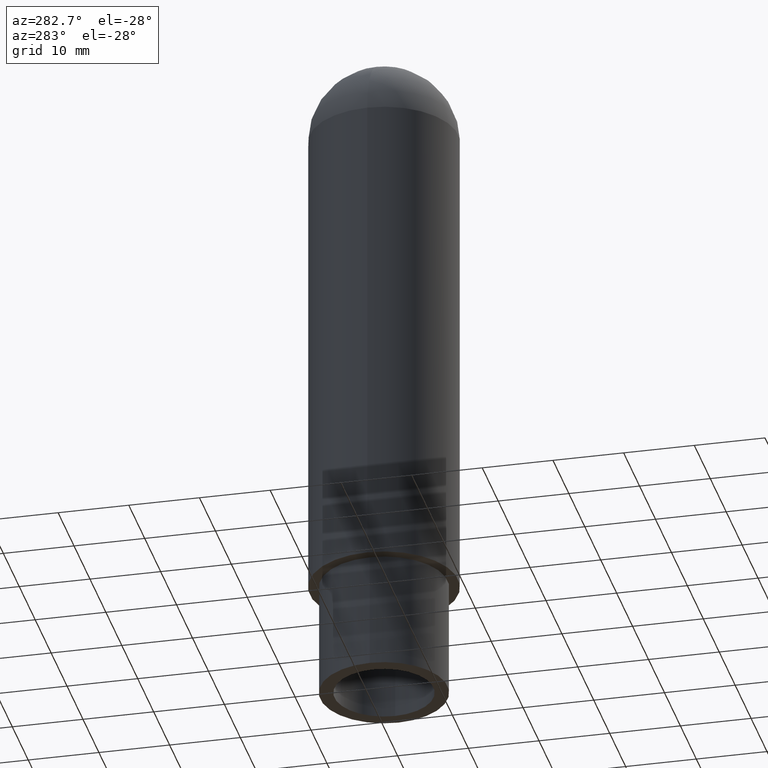
[diagram: clean part render]
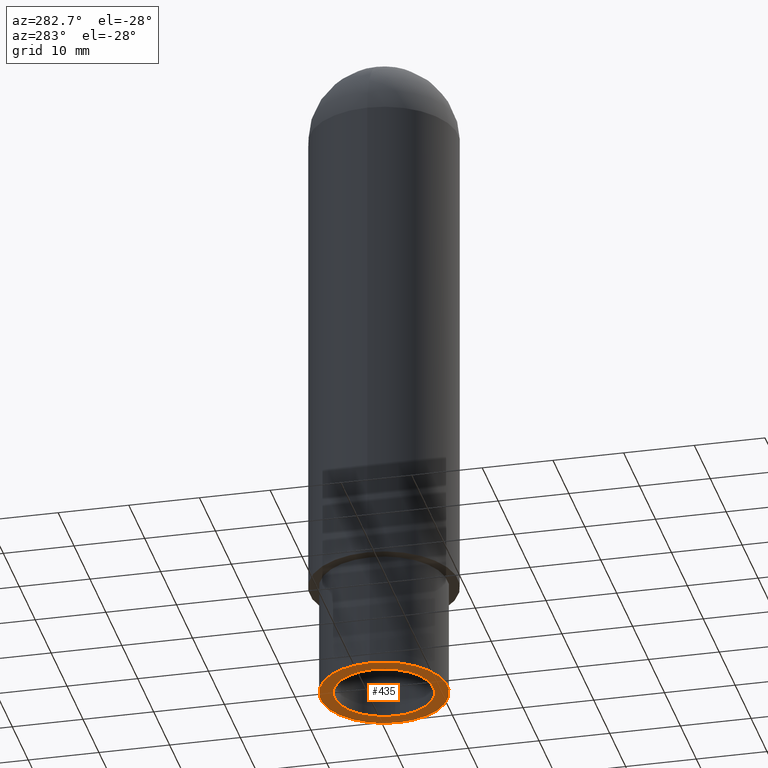
[diagram: same view with one face highlighted and labeled with its STEP entity id]
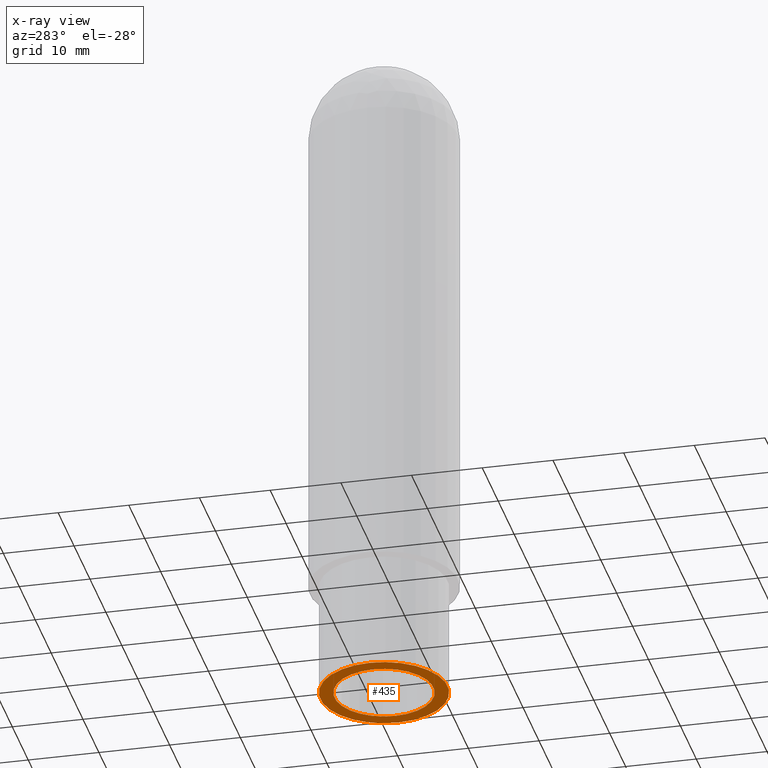
[diagram: x-ray of the same camera — body ghosted, the highlighted face saturated]
A machine part, auxiliary view. The second image highlights one B-rep face of the part: STEP entity #435.
The next image is the same camera in x-ray: the body ghosted, the highlighted face saturated — about 0% of this face is hidden behind the body in this view.
In plain terms, the highlighted planar face has unit normal (0, 0, -1).
Its self-contained STEP definition (entity closure, byte-faithful):
#49=CARTESIAN_POINT('',(-4.716946060098080,-1.613904443833870,0.0));
#50=VERTEX_POINT('',#49);
#59=CARTESIAN_POINT('',(13.283053939901919,-1.613904443833870,0.0));
#60=VERTEX_POINT('',#59);
#61=CARTESIAN_POINT('',(4.283053939901920,-1.613904443833871,0.0));
#62=DIRECTION('',(0.0,0.0,-1.0));
#63=DIRECTION('',(-1.0,0.0,0.0));
#64=AXIS2_PLACEMENT_3D('',#61,#62,#63);
#65=CIRCLE('',#64,9.0);
#66=EDGE_CURVE('',#60,#50,#65,.T.);
#93=CARTESIAN_POINT('',(-2.716946060098081,-1.613904443833870,0.0));
#94=VERTEX_POINT('',#93);
#110=CARTESIAN_POINT('',(11.283053939901922,-1.613904443833870,0.0));
#111=VERTEX_POINT('',#110);
#118=CARTESIAN_POINT('',(4.283053939901920,-1.613904443833871,0.0));
#119=DIRECTION('',(0.0,0.0,1.0));
#120=DIRECTION('',(-1.0,0.0,0.0));
#121=AXIS2_PLACEMENT_3D('',#118,#119,#120);
#122=CIRCLE('',#121,7.000000000000001);
#123=EDGE_CURVE('',#94,#111,#122,.T.);
#392=CARTESIAN_POINT('',(4.283053939901920,-1.613904443833871,0.0));
#393=DIRECTION('',(0.0,0.0,1.0));
#394=DIRECTION('',(-1.0,0.0,0.0));
#395=AXIS2_PLACEMENT_3D('',#392,#393,#394);
#396=CIRCLE('',#395,7.000000000000001);
#397=EDGE_CURVE('',#111,#94,#396,.T.);
#412=CARTESIAN_POINT('',(4.283053939901920,-1.613904443833871,0.0));
#413=DIRECTION('',(0.0,0.0,-1.0));
#414=DIRECTION('',(-1.0,0.0,0.0));
#415=AXIS2_PLACEMENT_3D('',#412,#413,#414);
#416=CIRCLE('',#415,9.0);
#417=EDGE_CURVE('',#50,#60,#416,.T.);
#422=CARTESIAN_POINT('',(4.283053939901920,-1.613904443833871,0.0));
#423=DIRECTION('',(0.0,0.0,-1.0));
#424=DIRECTION('',(-1.0,0.0,0.0));
#425=AXIS2_PLACEMENT_3D('',#422,#423,#424);
#426=PLANE('',#425);
#427=ORIENTED_EDGE('',*,*,#66,.T.);
#428=ORIENTED_EDGE('',*,*,#417,.T.);
#429=EDGE_LOOP('',(#427,#428));
#430=FACE_OUTER_BOUND('',#429,.T.);
#431=ORIENTED_EDGE('',*,*,#397,.T.);
#432=ORIENTED_EDGE('',*,*,#123,.T.);
#433=EDGE_LOOP('',(#431,#432));
#434=FACE_BOUND('',#433,.T.);
#435=ADVANCED_FACE('',(#430,#434),#426,.T.);